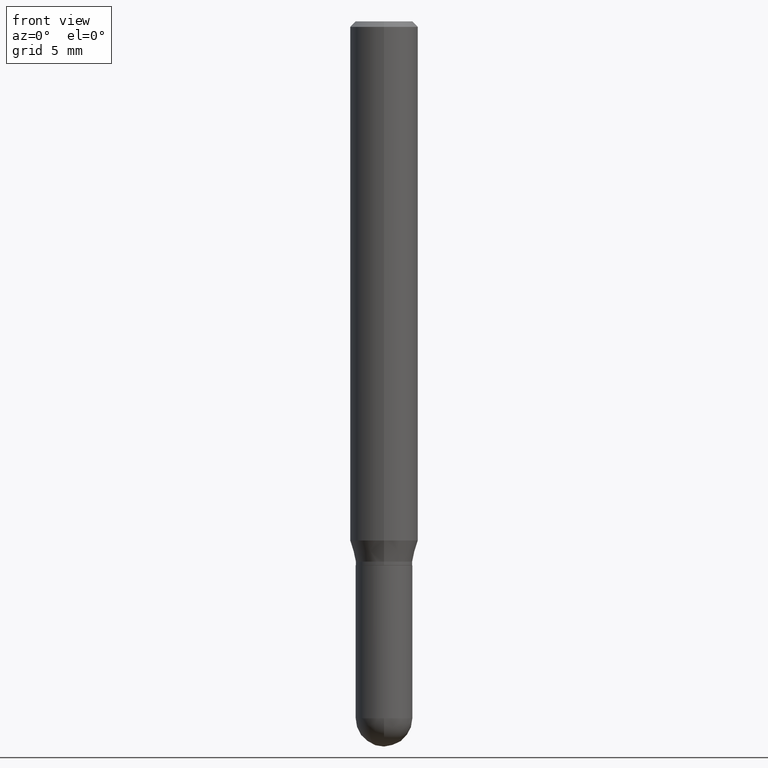
[diagram: clean part render]
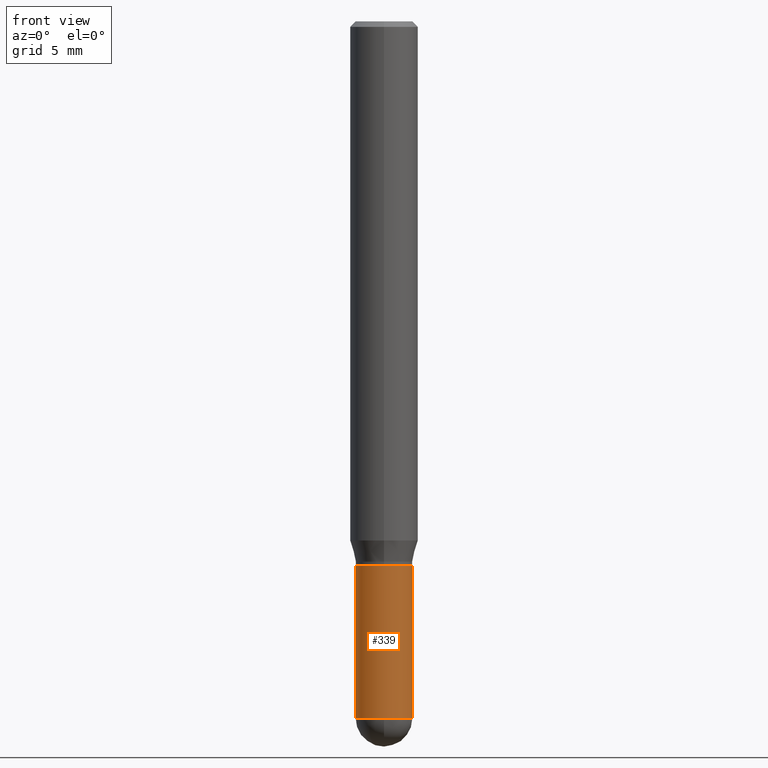
[diagram: same view with one face highlighted and labeled with its STEP entity id]
A machine part, front view. The second image highlights one B-rep face of the part: STEP entity #339.
In plain terms, the highlighted cylindrical surface (edge-blend (fillet) strip) has radius 1.9837 mm, axis along (-0, 0, 1).
Its self-contained STEP definition (entity closure, byte-faithful):
#7 = ORIENTED_EDGE ( 'NONE', *, *, #266, .T. ) ;
#21 = DIRECTION ( 'NONE',  ( -2.445468806185136877E-29, 3.491481338843145188E-15, 1.000000000000000000 ) ) ;
#39 = DIRECTION ( 'NONE',  ( 1.000000000000000000, -6.982962677686266711E-15, 4.876176775795935232E-29 ) ) ;
#40 = VERTEX_POINT ( 'NONE', #488 ) ;
#41 = DIRECTION ( 'NONE',  ( -2.445468806185136597E-29, 3.491481338843145583E-15, 1.000000000000000000 ) ) ;
#49 = ORIENTED_EDGE ( 'NONE', *, *, #505, .T. ) ;
#50 = AXIS2_PLACEMENT_3D ( 'NONE', #169, #287, #409 ) ;
#58 = VECTOR ( 'NONE', #21, 39.37007874015748143 ) ;
#62 = CARTESIAN_POINT ( 'NONE',  ( 0.07810000000000000275, -6.519119381820976762E-15, -1.921900000000000164 ) ) ;
#66 = CARTESIAN_POINT ( 'NONE',  ( -0.07810000000000000275, -5.418816120065042244E-15, -1.921900000000000164 ) ) ;
#84 = CARTESIAN_POINT ( 'NONE',  ( 3.668203209277704895E-29, -5.237222008264718177E-15, -1.500000000000000222 ) ) ;
#95 = LINE ( 'NONE', #126, #58 ) ;
#111 = CYLINDRICAL_SURFACE ( 'NONE', #422, 0.07810000000000000275 ) ;
#126 = CARTESIAN_POINT ( 'NONE',  ( 0.07810000000000000275, -5.453693851272974364E-16, 3.808294061896625703E-30 ) ) ;
#149 = EDGE_CURVE ( 'NONE', #160, #358, #293, .T. ) ;
#160 = VERTEX_POINT ( 'NONE', #66 ) ;
#164 = VERTEX_POINT ( 'NONE', #62 ) ;
#169 = CARTESIAN_POINT ( 'NONE',  ( 4.699946498607214373E-29, -6.710277985122641264E-15, -1.921900000000000164 ) ) ;
#188 = CARTESIAN_POINT ( 'NONE',  ( 0.07810000000000000275, -5.782591393392015613E-15, -1.500000000000000222 ) ) ;
#212 = VERTEX_POINT ( 'NONE', #188 ) ;
#219 = DIRECTION ( 'NONE',  ( -2.445468806185136877E-29, 3.491481338843145188E-15, 1.000000000000000000 ) ) ;
#231 = DIRECTION ( 'NONE',  ( 1.000000000000000000, -6.982962677686266711E-15, 0.000000000000000000 ) ) ;
#235 = CARTESIAN_POINT ( 'NONE',  ( -0.07810000000000000275, -5.418816120065042244E-15, -1.500000000000000222 ) ) ;
#251 = EDGE_LOOP ( 'NONE', ( #395, #49, #7, #297, #449 ) ) ;
#263 = DIRECTION ( 'NONE',  ( -2.445468806185136597E-29, 3.491481338843145583E-15, 1.000000000000000000 ) ) ;
#266 = EDGE_CURVE ( 'NONE', #40, #164, #510, .T. ) ;
#268 = CIRCLE ( 'NONE', #50, 0.07810000000000000275 ) ;
#279 = EDGE_CURVE ( 'NONE', #358, #212, #445, .T. ) ;
#287 = DIRECTION ( 'NONE',  ( -2.445468806185136597E-29, 3.491481338843145583E-15, 1.000000000000000000 ) ) ;
#293 = LINE ( 'NONE', #335, #345 ) ;
#297 = ORIENTED_EDGE ( 'NONE', *, *, #464, .T. ) ;
#308 = CARTESIAN_POINT ( 'NONE',  ( 4.699946498607214373E-29, -6.710277985122641264E-15, -1.921900000000000164 ) ) ;
#320 = AXIS2_PLACEMENT_3D ( 'NONE', #84, #347, #231 ) ;
#335 = CARTESIAN_POINT ( 'NONE',  ( -0.07810000000000000275, 5.549338766286382647E-16, -3.841688305489081275E-30 ) ) ;
#339 = ADVANCED_FACE ( 'NONE', ( #431 ), #111, .T. ) ;
#345 = VECTOR ( 'NONE', #219, 39.37007874015748143 ) ;
#346 = CARTESIAN_POINT ( 'NONE',  ( 0.000000000000000000, 0.000000000000000000, 0.000000000000000000 ) ) ;
#347 = DIRECTION ( 'NONE',  ( -2.445468806185136597E-29, 3.491481338843145583E-15, 1.000000000000000000 ) ) ;
#358 = VERTEX_POINT ( 'NONE', #235 ) ;
#395 = ORIENTED_EDGE ( 'NONE', *, *, #149, .F. ) ;
#409 = DIRECTION ( 'NONE',  ( 1.000000000000000000, -6.982962677686266711E-15, 0.000000000000000000 ) ) ;
#422 = AXIS2_PLACEMENT_3D ( 'NONE', #346, #263, #39 ) ;
#431 = FACE_OUTER_BOUND ( 'NONE', #251, .T. ) ;
#445 = CIRCLE ( 'NONE', #320, 0.07810000000000000275 ) ;
#446 = AXIS2_PLACEMENT_3D ( 'NONE', #308, #41, #512 ) ;
#449 = ORIENTED_EDGE ( 'NONE', *, *, #279, .F. ) ;
#464 = EDGE_CURVE ( 'NONE', #164, #212, #95, .T. ) ;
#488 = CARTESIAN_POINT ( 'NONE',  ( -5.549338766285910317E-16, -0.07810000000000670572, -1.921899999999999720 ) ) ;
#505 = EDGE_CURVE ( 'NONE', #160, #40, #268, .T. ) ;
#510 = CIRCLE ( 'NONE', #446, 0.07810000000000000275 ) ;
#512 = DIRECTION ( 'NONE',  ( 1.000000000000000000, -6.982962677686266711E-15, 0.000000000000000000 ) ) ;